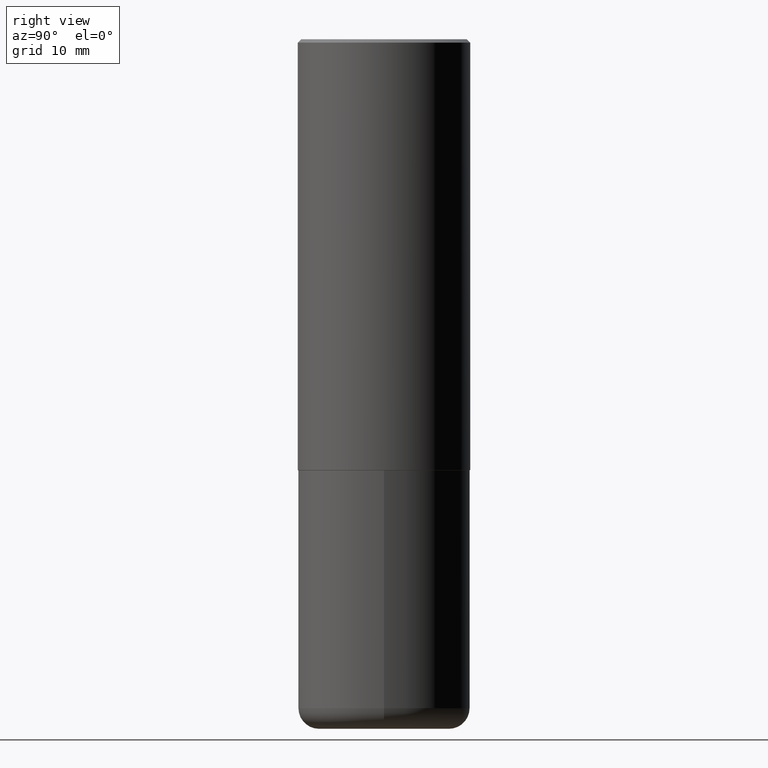
[diagram: clean part render]
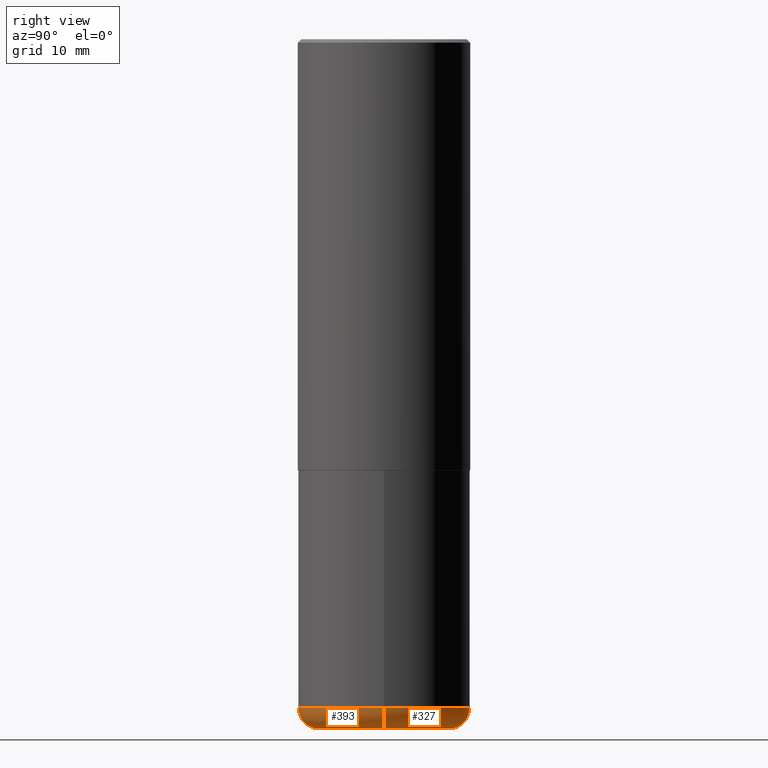
[diagram: same view with one multi-face feature highlighted, each face labeled with its STEP entity id]
A machine part, right view. The highlighted faces form ONE feature: a constant-radius fillet chain: 2 tangent blend faces with common blend radius 3.048 mm. The faces share edges in the B-rep.
Their STEP definitions:
[1] entity #393 (Torus):
#13 = AXIS2_PLACEMENT_3D ( 'NONE', #340, #20, #186 ) ;
#15 = CARTESIAN_POINT ( 'NONE',  ( -0.3799999999999999489, -1.063004843769755357E-14, -4.000000000000000888 ) ) ;
#20 = DIRECTION ( 'NONE',  ( -2.445468806185136597E-29, 3.491481338843145583E-15, 1.000000000000000000 ) ) ;
#22 = TOROIDAL_SURFACE ( 'NONE', #13, 0.3799999999999999489, 0.1200000000000002176 ) ;
#34 = EDGE_CURVE ( 'NONE', #104, #303, #343, .T. ) ;
#41 = ORIENTED_EDGE ( 'NONE', *, *, #354, .T. ) ;
#48 = CARTESIAN_POINT ( 'NONE',  ( 9.488418967998330085E-29, -1.354694759471140570E-14, -3.880000000000000338 ) ) ;
#49 = FACE_OUTER_BOUND ( 'NONE', #175, .T. ) ;
#50 = EDGE_CURVE ( 'NONE', #106, #257, #264, .T. ) ;
#89 = DIRECTION ( 'NONE',  ( -1.000000000000000000, 7.105427357601009747E-15, 0.000000000000000000 ) ) ;
#104 = VERTEX_POINT ( 'NONE', #15 ) ;
#105 = AXIS2_PLACEMENT_3D ( 'NONE', #237, #378, #118 ) ;
#106 = VERTEX_POINT ( 'NONE', #400 ) ;
#118 = DIRECTION ( 'NONE',  ( 1.000000000000000000, -6.982962677686272233E-15, 0.000000000000000000 ) ) ;
#149 = DIRECTION ( 'NONE',  ( -2.445468806185136597E-29, 3.491481338843145583E-15, 1.000000000000000000 ) ) ;
#170 = ORIENTED_EDGE ( 'NONE', *, *, #261, .F. ) ;
#175 = EDGE_LOOP ( 'NONE', ( #170, #390, #41, #347 ) ) ;
#186 = DIRECTION ( 'NONE',  ( 1.000000000000000000, -6.982962677686268288E-15, 4.883557194083113462E-29 ) ) ;
#208 = DIRECTION ( 'NONE',  ( 1.000000000000000000, -6.982962677686267499E-15, 0.000000000000000000 ) ) ;
#209 = CARTESIAN_POINT ( 'NONE',  ( 0.3799999999999999489, -1.661945117289336400E-14, -4.000000000000000888 ) ) ;
#237 = CARTESIAN_POINT ( 'NONE',  ( 0.3799999999999999489, -1.620047341223218736E-14, -3.880000000000000338 ) ) ;
#238 = AXIS2_PLACEMENT_3D ( 'NONE', #305, #272, #208 ) ;
#257 = VERTEX_POINT ( 'NONE', #351 ) ;
#261 = EDGE_CURVE ( 'NONE', #104, #106, #352, .T. ) ;
#264 = CIRCLE ( 'NONE', #269, 0.5000000000000001110 ) ;
#269 = AXIS2_PLACEMENT_3D ( 'NONE', #48, #149, #276 ) ;
#272 = DIRECTION ( 'NONE',  ( -2.445468806185136597E-29, 3.491481338843145583E-15, 1.000000000000000000 ) ) ;
#276 = DIRECTION ( 'NONE',  ( 1.000000000000000000, -6.982962677686265133E-15, 0.000000000000000000 ) ) ;
#279 = DIRECTION ( 'NONE',  ( 7.105427357601001859E-15, 1.000000000000000000, -3.491481338843145583E-15 ) ) ;
#289 = AXIS2_PLACEMENT_3D ( 'NONE', #314, #279, #89 ) ;
#303 = VERTEX_POINT ( 'NONE', #209 ) ;
#305 = CARTESIAN_POINT ( 'NONE',  ( 9.781875224740547508E-29, -1.396592535537258391E-14, -4.000000000000000888 ) ) ;
#314 = CARTESIAN_POINT ( 'NONE',  ( -0.3799999999999999489, -1.084688519882302575E-14, -3.880000000000000338 ) ) ;
#331 = CIRCLE ( 'NONE', #105, 0.1200000000000002176 ) ;
#340 = CARTESIAN_POINT ( 'NONE',  ( 9.488418967998330085E-29, -1.354694759471140570E-14, -3.880000000000000338 ) ) ;
#343 = CIRCLE ( 'NONE', #238, 0.3799999999999999489 ) ;
#347 = ORIENTED_EDGE ( 'NONE', *, *, #50, .F. ) ;
#351 = CARTESIAN_POINT ( 'NONE',  ( 0.5000000000000001110, -1.703842893355454063E-14, -3.880000000000000338 ) ) ;
#352 = CIRCLE ( 'NONE', #289, 0.1200000000000002176 ) ;
#354 = EDGE_CURVE ( 'NONE', #303, #257, #331, .T. ) ;
#378 = DIRECTION ( 'NONE',  ( -6.982962677686266711E-15, -1.000000000000000000, 3.491481338843145583E-15 ) ) ;
#390 = ORIENTED_EDGE ( 'NONE', *, *, #34, .T. ) ;
#393 = ADVANCED_FACE ( 'NONE', ( #49 ), #22, .T. ) ;
#400 = CARTESIAN_POINT ( 'NONE',  ( -0.5000000000000001110, -9.994233915910901612E-15, -3.880000000000000338 ) ) ;
[2] entity #327 (Torus):
#8 = ORIENTED_EDGE ( 'NONE', *, *, #354, .F. ) ;
#15 = CARTESIAN_POINT ( 'NONE',  ( -0.3799999999999999489, -1.063004843769755357E-14, -4.000000000000000888 ) ) ;
#68 = AXIS2_PLACEMENT_3D ( 'NONE', #212, #275, #366 ) ;
#89 = DIRECTION ( 'NONE',  ( -1.000000000000000000, 7.105427357601009747E-15, 0.000000000000000000 ) ) ;
#93 = AXIS2_PLACEMENT_3D ( 'NONE', #281, #130, #410 ) ;
#98 = EDGE_CURVE ( 'NONE', #303, #104, #176, .T. ) ;
#104 = VERTEX_POINT ( 'NONE', #15 ) ;
#105 = AXIS2_PLACEMENT_3D ( 'NONE', #237, #378, #118 ) ;
#106 = VERTEX_POINT ( 'NONE', #400 ) ;
#114 = CIRCLE ( 'NONE', #93, 0.5000000000000001110 ) ;
#118 = DIRECTION ( 'NONE',  ( 1.000000000000000000, -6.982962677686272233E-15, 0.000000000000000000 ) ) ;
#130 = DIRECTION ( 'NONE',  ( -2.445468806185136597E-29, 3.491481338843145583E-15, 1.000000000000000000 ) ) ;
#141 = AXIS2_PLACEMENT_3D ( 'NONE', #342, #345, #180 ) ;
#155 = EDGE_CURVE ( 'NONE', #257, #106, #114, .T. ) ;
#176 = CIRCLE ( 'NONE', #68, 0.3799999999999999489 ) ;
#180 = DIRECTION ( 'NONE',  ( 1.000000000000000000, -6.982962677686268288E-15, 4.883557194083113462E-29 ) ) ;
#209 = CARTESIAN_POINT ( 'NONE',  ( 0.3799999999999999489, -1.661945117289336400E-14, -4.000000000000000888 ) ) ;
#212 = CARTESIAN_POINT ( 'NONE',  ( 9.781875224740547508E-29, -1.396592535537258391E-14, -4.000000000000000888 ) ) ;
#237 = CARTESIAN_POINT ( 'NONE',  ( 0.3799999999999999489, -1.620047341223218736E-14, -3.880000000000000338 ) ) ;
#249 = FACE_OUTER_BOUND ( 'NONE', #395, .T. ) ;
#257 = VERTEX_POINT ( 'NONE', #351 ) ;
#261 = EDGE_CURVE ( 'NONE', #104, #106, #352, .T. ) ;
#275 = DIRECTION ( 'NONE',  ( -2.445468806185136597E-29, 3.491481338843145583E-15, 1.000000000000000000 ) ) ;
#279 = DIRECTION ( 'NONE',  ( 7.105427357601001859E-15, 1.000000000000000000, -3.491481338843145583E-15 ) ) ;
#281 = CARTESIAN_POINT ( 'NONE',  ( 9.488418967998330085E-29, -1.354694759471140570E-14, -3.880000000000000338 ) ) ;
#287 = ORIENTED_EDGE ( 'NONE', *, *, #98, .T. ) ;
#289 = AXIS2_PLACEMENT_3D ( 'NONE', #314, #279, #89 ) ;
#298 = ORIENTED_EDGE ( 'NONE', *, *, #261, .T. ) ;
#303 = VERTEX_POINT ( 'NONE', #209 ) ;
#309 = ORIENTED_EDGE ( 'NONE', *, *, #155, .F. ) ;
#314 = CARTESIAN_POINT ( 'NONE',  ( -0.3799999999999999489, -1.084688519882302575E-14, -3.880000000000000338 ) ) ;
#327 = ADVANCED_FACE ( 'NONE', ( #249 ), #415, .T. ) ;
#331 = CIRCLE ( 'NONE', #105, 0.1200000000000002176 ) ;
#342 = CARTESIAN_POINT ( 'NONE',  ( 9.488418967998330085E-29, -1.354694759471140570E-14, -3.880000000000000338 ) ) ;
#345 = DIRECTION ( 'NONE',  ( -2.445468806185136597E-29, 3.491481338843145583E-15, 1.000000000000000000 ) ) ;
#351 = CARTESIAN_POINT ( 'NONE',  ( 0.5000000000000001110, -1.703842893355454063E-14, -3.880000000000000338 ) ) ;
#352 = CIRCLE ( 'NONE', #289, 0.1200000000000002176 ) ;
#354 = EDGE_CURVE ( 'NONE', #303, #257, #331, .T. ) ;
#366 = DIRECTION ( 'NONE',  ( 1.000000000000000000, -6.982962677686267499E-15, 0.000000000000000000 ) ) ;
#378 = DIRECTION ( 'NONE',  ( -6.982962677686266711E-15, -1.000000000000000000, 3.491481338843145583E-15 ) ) ;
#395 = EDGE_LOOP ( 'NONE', ( #287, #298, #309, #8 ) ) ;
#400 = CARTESIAN_POINT ( 'NONE',  ( -0.5000000000000001110, -9.994233915910901612E-15, -3.880000000000000338 ) ) ;
#410 = DIRECTION ( 'NONE',  ( 1.000000000000000000, -6.982962677686265133E-15, 0.000000000000000000 ) ) ;
#415 = TOROIDAL_SURFACE ( 'NONE', #141, 0.3799999999999999489, 0.1200000000000002176 ) ;